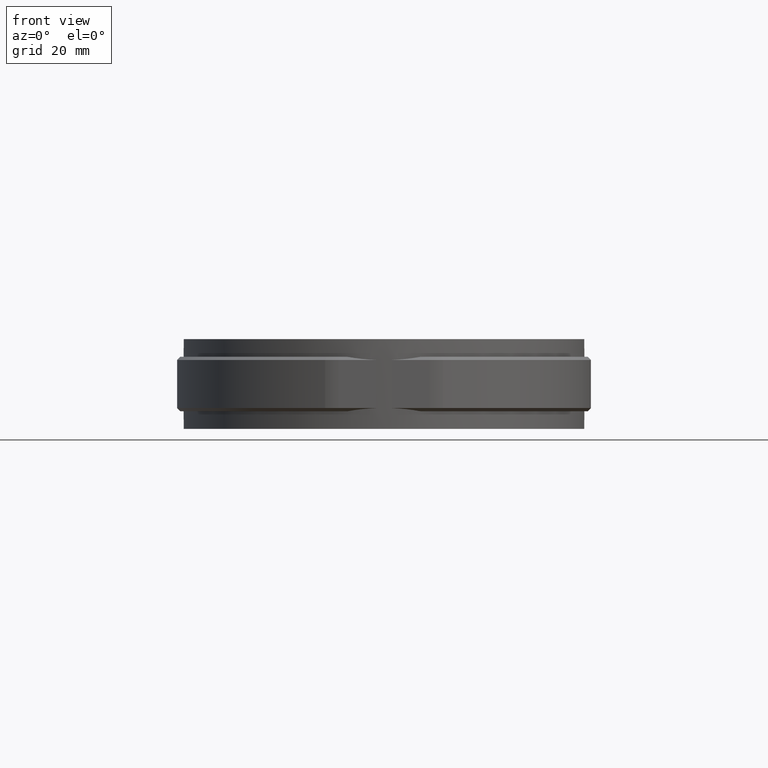
[diagram: clean part render]
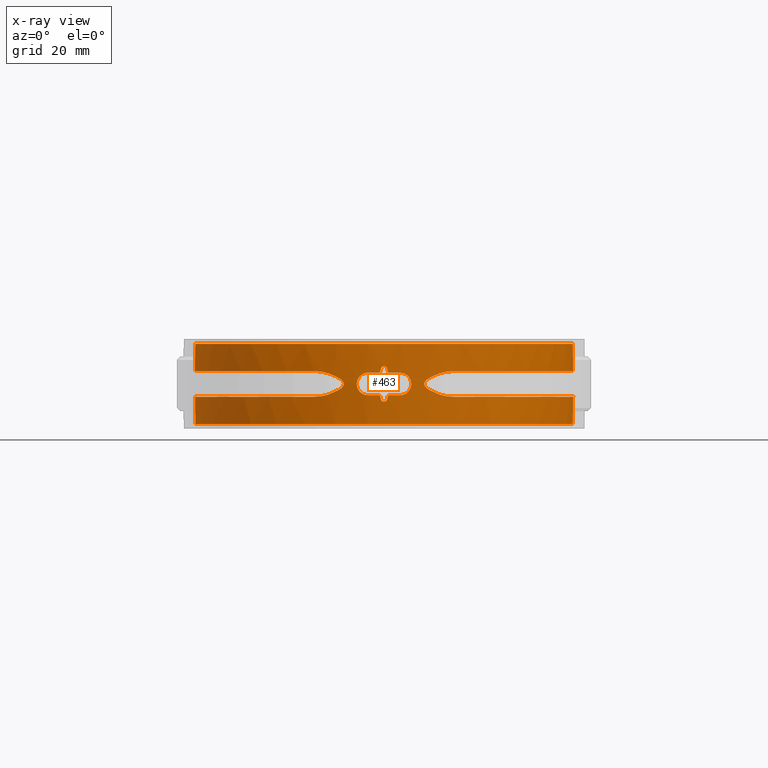
[diagram: x-ray — body ghosted, one internal face saturated and labeled with its STEP entity id]
A machine part, front view, then the same camera in x-ray: the body is ghosted and one INTERNAL B-rep face — a face not visible from any outside direction — is saturated and labeled: STEP entity #463.
In plain terms, the highlighted cylindrical surface (partial cylindrical patch) has radius 59 mm, axis along (0, 0, -1).
Its self-contained STEP definition (entity closure, byte-faithful):
#463 = ADVANCED_FACE( '', ( #812, #813 ), #814, .F. );
#812 = FACE_BOUND( '', #1546, .T. );
#813 = FACE_OUTER_BOUND( '', #1547, .T. );
#814 = CYLINDRICAL_SURFACE( '', #1548, 59.0000000000000 );
#1546 = EDGE_LOOP( '', ( #2988, #2989, #2990, #2991, #2992, #2993, #2994, #2995, #2996, #2997, #2998, #2999, #3000, #3001, #3002, #3003 ) );
#1547 = EDGE_LOOP( '', ( #3004, #3005, #3006, #3007, #3008, #3009, #3010, #3011, #3012, #3013, #3014, #3015, #3016, #3017, #3018, #3019 ) );
#1548 = AXIS2_PLACEMENT_3D( '', #3020, #3021, #3022 );
#2988 = ORIENTED_EDGE( '', *, *, #6739, .F. );
#2989 = ORIENTED_EDGE( '', *, *, #6740, .F. );
#2990 = ORIENTED_EDGE( '', *, *, #6741, .F. );
#2991 = ORIENTED_EDGE( '', *, *, #6742, .F. );
#2992 = ORIENTED_EDGE( '', *, *, #6743, .F. );
#2993 = ORIENTED_EDGE( '', *, *, #6744, .F. );
#2994 = ORIENTED_EDGE( '', *, *, #6745, .F. );
#2995 = ORIENTED_EDGE( '', *, *, #6746, .F. );
#2996 = ORIENTED_EDGE( '', *, *, #6747, .F. );
#2997 = ORIENTED_EDGE( '', *, *, #6748, .F. );
#2998 = ORIENTED_EDGE( '', *, *, #6749, .F. );
#2999 = ORIENTED_EDGE( '', *, *, #6750, .F. );
#3000 = ORIENTED_EDGE( '', *, *, #6751, .F. );
#3001 = ORIENTED_EDGE( '', *, *, #6752, .F. );
#3002 = ORIENTED_EDGE( '', *, *, #6736, .F. );
#3003 = ORIENTED_EDGE( '', *, *, #6732, .F. );
#3004 = ORIENTED_EDGE( '', *, *, #6753, .F. );
#3005 = ORIENTED_EDGE( '', *, *, #6754, .F. );
#3006 = ORIENTED_EDGE( '', *, *, #6755, .T. );
#3007 = ORIENTED_EDGE( '', *, *, #6756, .T. );
#3008 = ORIENTED_EDGE( '', *, *, #6757, .T. );
#3009 = ORIENTED_EDGE( '', *, *, #6758, .T. );
#3010 = ORIENTED_EDGE( '', *, *, #6759, .T. );
#3011 = ORIENTED_EDGE( '', *, *, #6760, .T. );
#3012 = ORIENTED_EDGE( '', *, *, #6761, .T. );
#3013 = ORIENTED_EDGE( '', *, *, #6762, .T. );
#3014 = ORIENTED_EDGE( '', *, *, #6763, .F. );
#3015 = ORIENTED_EDGE( '', *, *, #6764, .F. );
#3016 = ORIENTED_EDGE( '', *, *, #6765, .F. );
#3017 = ORIENTED_EDGE( '', *, *, #6766, .F. );
#3018 = ORIENTED_EDGE( '', *, *, #6767, .F. );
#3019 = ORIENTED_EDGE( '', *, *, #6768, .F. );
#3020 = CARTESIAN_POINT( '', ( 0.000000000000000, 0.000000000000000, -12.5000000000000 ) );
#3021 = DIRECTION( '', ( 0.000000000000000, 0.000000000000000, -1.00000000000000 ) );
#3022 = DIRECTION( '', ( -1.00000000000000, 6.16283340149655E-017, 0.000000000000000 ) );
#6732 = EDGE_CURVE( '', #7686, #7687, #7688, .T. );
#6736 = EDGE_CURVE( '', #7687, #7694, #7695, .T. );
#6739 = EDGE_CURVE( '', #7699, #7686, #7700, .T. );
#6740 = EDGE_CURVE( '', #7701, #7699, #7702, .T. );
#6741 = EDGE_CURVE( '', #7703, #7701, #7704, .T. );
#6742 = EDGE_CURVE( '', #7705, #7703, #7706, .T. );
#6743 = EDGE_CURVE( '', #7707, #7705, #7708, .T. );
#6744 = EDGE_CURVE( '', #7709, #7707, #7710, .T. );
#6745 = EDGE_CURVE( '', #7711, #7709, #7712, .T. );
#6746 = EDGE_CURVE( '', #7713, #7711, #7714, .T. );
#6747 = EDGE_CURVE( '', #7715, #7713, #7716, .T. );
#6748 = EDGE_CURVE( '', #7717, #7715, #7718, .T. );
#6749 = EDGE_CURVE( '', #7719, #7717, #7720, .T. );
#6750 = EDGE_CURVE( '', #7721, #7719, #7722, .T. );
#6751 = EDGE_CURVE( '', #7723, #7721, #7724, .T. );
#6752 = EDGE_CURVE( '', #7694, #7723, #7725, .T. );
#6753 = EDGE_CURVE( '', #7726, #7727, #7728, .T. );
#6754 = EDGE_CURVE( '', #7729, #7726, #7730, .T. );
#6755 = EDGE_CURVE( '', #7729, #7731, #7732, .T. );
#6756 = EDGE_CURVE( '', #7731, #7733, #7734, .T. );
#6757 = EDGE_CURVE( '', #7733, #7735, #7736, .T. );
#6758 = EDGE_CURVE( '', #7735, #7737, #7738, .T. );
#6759 = EDGE_CURVE( '', #7737, #7739, #7740, .T. );
#6760 = EDGE_CURVE( '', #7739, #7741, #7742, .T. );
#6761 = EDGE_CURVE( '', #7741, #7743, #7744, .T. );
#6762 = EDGE_CURVE( '', #7743, #7745, #7746, .T. );
#6763 = EDGE_CURVE( '', #7747, #7745, #7748, .T. );
#6764 = EDGE_CURVE( '', #7749, #7747, #7750, .T. );
#6765 = EDGE_CURVE( '', #7751, #7749, #7752, .T. );
#6766 = EDGE_CURVE( '', #7753, #7751, #7754, .T. );
#6767 = EDGE_CURVE( '', #7755, #7753, #7756, .T. );
#6768 = EDGE_CURVE( '', #7727, #7755, #7757, .T. );
#7686 = VERTEX_POINT( '', #9272 );
#7687 = VERTEX_POINT( '', #9273 );
#7688 = B_SPLINE_CURVE_WITH_KNOTS( '', 3, ( #9274, #9275, #9276, #9277, #9278, #9279 ), .UNSPECIFIED., .F., .F., ( 4, 2, 4 ), ( 0.000000000000000, 0.000335830664960721, 0.000671661329921441 ), .UNSPECIFIED. );
#7694 = VERTEX_POINT( '', #9292 );
#7695 = ELLIPSE( '', #9293, 268.778051997388, 59.0000000000000 );
#7699 = VERTEX_POINT( '', #9298 );
#7700 = CIRCLE( '', #9299, 59.0000000000000 );
#7701 = VERTEX_POINT( '', #9300 );
#7702 = B_SPLINE_CURVE_WITH_KNOTS( '', 3, ( #9301, #9302, #9303, #9304, #9305, #9306, #9307, #9308, #9309, #9310, #9311, #9312, #9313, #9314, #9315, #9316, #9317, #9318, #9319, #9320, #9321, #9322, #9323, #9324, #9325, #9326, #9327, #9328, #9329, #9330, #9331, #9332, #9333, #9334 ), .UNSPECIFIED., .F., .F., ( 4, 2, 2, 2, 2, 2, 2, 2, 2, 2, 2, 2, 2, 2, 2, 2, 4 ), ( 0.000000000000000, 0.000685851132753038, 0.00137170226550608, 0.00205755339825911, 0.00274340453101215, 0.00342925566376519, 0.00411510679651823, 0.00480095792927127, 0.00548680906202431, 0.00617266019477734, 0.00685851132753038, 0.00754436246028342, 0.00823021359303646, 0.00891606472578950, 0.00960191585854253, 0.0102877669912956, 0.0109736181240486 ), .UNSPECIFIED. );
#7703 = VERTEX_POINT( '', #9335 );
#7704 = CIRCLE( '', #9336, 59.0000000000000 );
#7705 = VERTEX_POINT( '', #9337 );
#7706 = B_SPLINE_CURVE_WITH_KNOTS( '', 3, ( #9338, #9339, #9340, #9341, #9342, #9343 ), .UNSPECIFIED., .F., .F., ( 4, 2, 4 ), ( 0.000000000000000, 0.000335831862517561, 0.000671663725035123 ), .UNSPECIFIED. );
#7707 = VERTEX_POINT( '', #9344 );
#7708 = ELLIPSE( '', #9345, 268.777914887554, 59.0000000000000 );
#7709 = VERTEX_POINT( '', #9346 );
#7710 = B_SPLINE_CURVE_WITH_KNOTS( '', 3, ( #9347, #9348, #9349, #9350, #9351, #9352, #9353, #9354, #9355, #9356 ), .UNSPECIFIED., .F., .F., ( 4, 2, 2, 2, 4 ), ( 0.000000000000000, 0.000671559463065124, 0.00134311892613025, 0.00201467838919537, 0.00268623785226050 ), .UNSPECIFIED. );
#7711 = VERTEX_POINT( '', #9357 );
#7712 = ELLIPSE( '', #9358, 268.778051997445, 59.0000000000000 );
#7713 = VERTEX_POINT( '', #9359 );
#7714 = B_SPLINE_CURVE_WITH_KNOTS( '', 3, ( #9360, #9361, #9362, #9363, #9364, #9365 ), .UNSPECIFIED., .F., .F., ( 4, 2, 4 ), ( 0.000000000000000, 0.000335830664960740, 0.000671661329921480 ), .UNSPECIFIED. );
#7715 = VERTEX_POINT( '', #9366 );
#7716 = CIRCLE( '', #9367, 59.0000000000000 );
#7717 = VERTEX_POINT( '', #9368 );
#7718 = B_SPLINE_CURVE_WITH_KNOTS( '', 3, ( #9369, #9370, #9371, #9372, #9373, #9374, #9375, #9376, #9377, #9378, #9379, #9380, #9381, #9382, #9383, #9384, #9385, #9386, #9387, #9388, #9389, #9390, #9391, #9392, #9393, #9394, #9395, #9396, #9397, #9398, #9399, #9400, #9401, #9402 ), .UNSPECIFIED., .F., .F., ( 4, 2, 2, 2, 2, 2, 2, 2, 2, 2, 2, 2, 2, 2, 2, 2, 4 ), ( 0.000000000000000, 0.000685851132753035, 0.00137170226550607, 0.00205755339825910, 0.00274340453101214, 0.00342925566376517, 0.00411510679651821, 0.00480095792927124, 0.00548680906202427, 0.00617266019477731, 0.00685851132753034, 0.00754436246028337, 0.00823021359303640, 0.00891606472578944, 0.00960191585854247, 0.0102877669912955, 0.0109736181240485 ), .UNSPECIFIED. );
#7719 = VERTEX_POINT( '', #9403 );
#7720 = CIRCLE( '', #9404, 59.0000000000000 );
#7721 = VERTEX_POINT( '', #9405 );
#7722 = B_SPLINE_CURVE_WITH_KNOTS( '', 3, ( #9406, #9407, #9408, #9409, #9410, #9411 ), .UNSPECIFIED., .F., .F., ( 4, 2, 4 ), ( 0.000000000000000, 0.000335831862517506, 0.000671663725035012 ), .UNSPECIFIED. );
#7723 = VERTEX_POINT( '', #9412 );
#7724 = ELLIPSE( '', #9413, 268.777914887533, 59.0000000000000 );
#7725 = B_SPLINE_CURVE_WITH_KNOTS( '', 3, ( #9414, #9415, #9416, #9417, #9418, #9419, #9420, #9421, #9422, #9423 ), .UNSPECIFIED., .F., .F., ( 4, 2, 2, 2, 4 ), ( 1.08420217248550E-019, 0.000671559463065125, 0.00134311892613025, 0.00201467838919537, 0.00268623785226050 ), .UNSPECIFIED. );
#7726 = VERTEX_POINT( '', #9424 );
#7727 = VERTEX_POINT( '', #9425 );
#7728 = B_SPLINE_CURVE_WITH_KNOTS( '', 3, ( #9426, #9427, #9428, #9429, #9430, #9431, #9432, #9433, #9434, #9435, #9436, #9437, #9438, #9439, #9440, #9441, #9442, #9443, #9444, #9445, #9446, #9447, #9448, #9449, #9450, #9451, #9452, #9453, #9454, #9455, #9456, #9457, #9458, #9459, #9460, #9461, #9462, #9463, #9464, #9465, #9466, #9467, #9468, #9469, #9470, #9471, #9472, #9473, #9474, #9475, #9476, #9477, #9478, #9479, #9480, #9481, #9482, #9483, #9484, #9485 ), .UNSPECIFIED., .F., .F., ( 4, 2, 2, 2, 2, 2, 2, 2, 2, 2, 2, 2, 2, 2, 2, 2, 2, 2, 2, 2, 2, 2, 2, 2, 2, 2, 2, 2, 2, 4 ), ( 0.000000000000000, 0.00982109824679834, 0.0147316473701975, 0.0196421964935967, 0.0294632947403950, 0.0319185693020946, 0.0343738438637942, 0.0392843929871934, 0.0491054912339918, 0.0515607657956913, 0.0540160403573909, 0.0589265894807900, 0.0687476877275883, 0.0712029622892879, 0.0736582368509874, 0.0785687859743866, 0.0883898842211849, 0.0908451587828845, 0.0933004333445840, 0.0982109824679832, 0.108032080714781, 0.110487355276481, 0.112942629838181, 0.117853178961580, 0.127674277208378, 0.132584826331777, 0.137495375455176, 0.147316473701975, 0.152227022825374, 0.157137571948773 ), .UNSPECIFIED. );
#7729 = VERTEX_POINT( '', #9486 );
#7730 = LINE( '', #9487, #9488 );
#7731 = VERTEX_POINT( '', #9489 );
#7732 = CIRCLE( '', #9490, 59.0000000000000 );
#7733 = VERTEX_POINT( '', #9491 );
#7734 = LINE( '', #9492, #9493 );
#7735 = VERTEX_POINT( '', #9494 );
#7736 = B_SPLINE_CURVE_WITH_KNOTS( '', 3, ( #9495, #9496, #9497, #9498, #9499, #9500, #9501, #9502, #9503, #9504, #9505, #9506, #9507, #9508, #9509, #9510, #9511, #9512, #9513, #9514, #9515, #9516, #9517, #9518, #9519, #9520, #9521, #9522, #9523, #9524, #9525, #9526, #9527, #9528, #9529, #9530, #9531, #9532, #9533, #9534, #9535, #9536, #9537, #9538, #9539, #9540, #9541, #9542, #9543, #9544, #9545, #9546, #9547, #9548, #9549, #9550, #9551, #9552, #9553, #9554, #9555, #9556, #9557, #9558 ), .UNSPECIFIED., .F., .F., ( 4, 2, 2, 2, 2, 2, 2, 2, 2, 2, 2, 2, 2, 2, 2, 2, 2, 2, 2, 2, 2, 2, 2, 2, 2, 2, 2, 2, 2, 2, 2, 4 ), ( 0.00468908810385435, 0.00960021925515397, 0.0120557848308038, 0.0145113504064536, 0.0243336127090528, 0.0292447438603525, 0.0317003094360023, 0.0341558750116521, 0.0439781373142514, 0.0488892684655510, 0.0513448340412008, 0.0538003996168507, 0.0636226619194500, 0.0685337930707497, 0.0709893586463995, 0.0734449242220494, 0.0832671865246487, 0.0881783176759484, 0.0906338832515983, 0.0930894488272481, 0.102911711129847, 0.107822842281147, 0.112733973432447, 0.122556235735046, 0.127467366886346, 0.129922932461996, 0.132378498037646, 0.142200760340245, 0.147111891491545, 0.149567457067194, 0.152023022642844, 0.161845284945444 ), .UNSPECIFIED. );
#7737 = VERTEX_POINT( '', #9559 );
#7738 = B_SPLINE_CURVE_WITH_KNOTS( '', 3, ( #9560, #9561, #9562, #9563, #9564, #9565, #9566, #9567 ), .UNSPECIFIED., .F., .F., ( 4, 2, 2, 4 ), ( 0.000000000000000, 0.00238180477865858, 0.00357270716798786, 0.00476360955731715 ), .UNSPECIFIED. );
#7739 = VERTEX_POINT( '', #9568 );
#7740 = B_SPLINE_CURVE_WITH_KNOTS( '', 3, ( #9569, #9570, #9571, #9572, #9573, #9574, #9575, #9576, #9577, #9578, #9579, #9580, #9581, #9582, #9583, #9584, #9585, #9586, #9587, #9588, #9589, #9590, #9591, #9592, #9593, #9594, #9595, #9596, #9597, #9598, #9599, #9600 ), .UNSPECIFIED., .F., .F., ( 4, 2, 2, 2, 2, 2, 2, 2, 2, 2, 2, 2, 2, 2, 2, 4 ), ( 0.000000000000000, 0.00155772250245570, 0.00311544500491140, 0.00389430625613926, 0.00467316750736711, 0.00545202875859497, 0.00584145938420890, 0.00623089000982283, 0.00662032063543675, 0.00700975126105068, 0.00739918188666461, 0.00778861251227854, 0.00856747376350639, 0.00934633501473424, 0.0109040575171899, 0.0124617800196456 ), .UNSPECIFIED. );
#7741 = VERTEX_POINT( '', #9601 );
#7742 = B_SPLINE_CURVE_WITH_KNOTS( '', 3, ( #9602, #9603, #9604, #9605, #9606, #9607 ), .UNSPECIFIED., .F., .F., ( 4, 2, 4 ), ( 0.000000000000000, 0.00237608855022775, 0.00475217710045549 ), .UNSPECIFIED. );
#7743 = VERTEX_POINT( '', #9608 );
#7744 = B_SPLINE_CURVE_WITH_KNOTS( '', 3, ( #9609, #9610, #9611, #9612, #9613, #9614, #9615, #9616, #9617, #9618, #9619, #9620, #9621, #9622, #9623, #9624, #9625, #9626, #9627, #9628, #9629, #9630, #9631, #9632, #9633, #9634, #9635, #9636, #9637, #9638, #9639, #9640, #9641, #9642, #9643, #9644, #9645, #9646, #9647, #9648, #9649, #9650, #9651, #9652, #9653, #9654, #9655, #9656, #9657, #9658, #9659, #9660, #9661, #9662, #9663, #9664, #9665, #9666, #9667, #9668, #9669, #9670 ), .UNSPECIFIED., .F., .F., ( 4, 2, 2, 2, 2, 2, 2, 2, 2, 2, 2, 2, 2, 2, 2, 2, 2, 2, 2, 2, 2, 2, 2, 2, 2, 2, 2, 2, 2, 2, 4 ), ( 0.000000000000000, 0.00982211142445252, 0.0147331671366788, 0.0196442228489050, 0.0294663342733575, 0.0319218621294707, 0.0343773899855838, 0.0392884456978101, 0.0491105571222626, 0.0515660849783757, 0.0540216128344888, 0.0589326685467150, 0.0687547799711675, 0.0712103078272806, 0.0736658356833938, 0.0785768913956200, 0.0883990028200725, 0.0908545306761856, 0.0933100585322987, 0.0982211142445250, 0.108043225668977, 0.110498753525091, 0.112954281381204, 0.117865337093430, 0.127687448517882, 0.132598504230109, 0.137509559942335, 0.147331671366787, 0.149787199222901, 0.152242727079014, 0.157153782791240 ), .UNSPECIFIED. );
#7745 = VERTEX_POINT( '', #9671 );
#7746 = LINE( '', #9672, #9673 );
#7747 = VERTEX_POINT( '', #9674 );
#7748 = CIRCLE( '', #9675, 59.0000000000000 );
#7749 = VERTEX_POINT( '', #9676 );
#7750 = LINE( '', #9677, #9678 );
#7751 = VERTEX_POINT( '', #9679 );
#7752 = B_SPLINE_CURVE_WITH_KNOTS( '', 3, ( #9680, #9681, #9682, #9683, #9684, #9685, #9686, #9687, #9688, #9689, #9690, #9691, #9692, #9693, #9694, #9695, #9696, #9697, #9698, #9699, #9700, #9701, #9702, #9703, #9704, #9705, #9706, #9707, #9708, #9709, #9710, #9711, #9712, #9713, #9714, #9715, #9716, #9717, #9718, #9719, #9720, #9721, #9722, #9723, #9724, #9725, #9726, #9727, #9728, #9729, #9730, #9731, #9732, #9733, #9734, #9735, #9736, #9737, #9738, #9739, #9740, #9741 ), .UNSPECIFIED., .F., .F., ( 4, 2, 2, 2, 2, 2, 2, 2, 2, 2, 2, 2, 2, 2, 2, 2, 2, 2, 2, 2, 2, 2, 2, 2, 2, 2, 2, 2, 2, 2, 4 ), ( 0.000000000000000, 0.00982211142445247, 0.0147331671366787, 0.0196442228489049, 0.0294663342733574, 0.0319218621294705, 0.0343773899855837, 0.0392884456978099, 0.0491105571222624, 0.0515660849783756, 0.0540216128344887, 0.0589326685467149, 0.0687547799711674, 0.0712103078272806, 0.0736658356833937, 0.0785768913956199, 0.0883990028200724, 0.0908545306761855, 0.0933100585322987, 0.0982211142445249, 0.108043225668977, 0.110498753525091, 0.112954281381204, 0.117865337093430, 0.127687448517882, 0.132598504230109, 0.137509559942335, 0.147331671366787, 0.149787199222900, 0.152242727079014, 0.157153782791240 ), .UNSPECIFIED. );
#7753 = VERTEX_POINT( '', #9742 );
#7754 = B_SPLINE_CURVE_WITH_KNOTS( '', 3, ( #9743, #9744, #9745, #9746, #9747, #9748 ), .UNSPECIFIED., .F., .F., ( 4, 2, 4 ), ( 0.000000000000000, 0.00237608855022775, 0.00475217710045549 ), .UNSPECIFIED. );
#7755 = VERTEX_POINT( '', #9749 );
#7756 = B_SPLINE_CURVE_WITH_KNOTS( '', 3, ( #9750, #9751, #9752, #9753, #9754, #9755, #9756, #9757, #9758, #9759, #9760, #9761, #9762, #9763, #9764, #9765, #9766, #9767, #9768, #9769, #9770, #9771, #9772, #9773, #9774, #9775, #9776, #9777, #9778, #9779, #9780, #9781 ), .UNSPECIFIED., .F., .F., ( 4, 2, 2, 2, 2, 2, 2, 2, 2, 2, 2, 2, 2, 2, 2, 4 ), ( 0.000000000000000, 0.00155772250245570, 0.00311544500491140, 0.00389430625613926, 0.00467316750736711, 0.00545202875859497, 0.00584145938420890, 0.00623089000982283, 0.00662032063543675, 0.00700975126105068, 0.00739918188666461, 0.00778861251227854, 0.00856747376350639, 0.00934633501473424, 0.0109040575171899, 0.0124617800196456 ), .UNSPECIFIED. );
#7757 = B_SPLINE_CURVE_WITH_KNOTS( '', 3, ( #9782, #9783, #9784, #9785, #9786, #9787, #9788, #9789 ), .UNSPECIFIED., .F., .F., ( 4, 2, 2, 4 ), ( 0.000000000000000, 0.00238180477865858, 0.00357270716798786, 0.00476360955731715 ), .UNSPECIFIED. );
#9272 = CARTESIAN_POINT( '', ( 1.64999999999996, -58.9769234531609, -3.50000000000000 ) );
#9273 = CARTESIAN_POINT( '', ( 1.16219512100908, -58.9885523004312, -3.89024390662627 ) );
#9274 = CARTESIAN_POINT( '', ( 1.64999999999996, -58.9769234531609, -3.50000000000000 ) );
#9275 = CARTESIAN_POINT( '', ( 1.53648956970049, -58.9800991394977, -3.50000000000000 ) );
#9276 = CARTESIAN_POINT( '', ( 1.42634218063908, -58.9828230301944, -3.53862491769604 ) );
#9277 = CARTESIAN_POINT( '', ( 1.24902230327138, -58.9868443630734, -3.68045865141035 ) );
#9278 = CARTESIAN_POINT( '', ( 1.18712178149787, -58.9880611942407, -3.77945874445779 ) );
#9279 = CARTESIAN_POINT( '', ( 1.16219512100908, -58.9885523004312, -3.89024390662627 ) );
#9292 = CARTESIAN_POINT( '', ( 0.975609999999941, -58.9919332208049, -4.71951199999997 ) );
#9293 = AXIS2_PLACEMENT_3D( '', #13656, #13657, #13658 );
#9298 = CARTESIAN_POINT( '', ( 4.99999999999998, -58.7877538267963, -3.50000000000000 ) );
#9299 = AXIS2_PLACEMENT_3D( '', #13663, #13664, #13665 );
#9300 = CARTESIAN_POINT( '', ( 4.99999999999998, -58.7877538267963, 3.50000000000002 ) );
#9301 = CARTESIAN_POINT( '', ( 4.99999999999998, -58.7877538267963, 3.50000000000002 ) );
#9302 = CARTESIAN_POINT( '', ( 5.23108413348057, -58.7680997221199, 3.50000000000002 ) );
#9303 = CARTESIAN_POINT( '', ( 5.45819455013254, -58.7474122779407, 3.47733999200575 ) );
#9304 = CARTESIAN_POINT( '', ( 5.90482783050663, -58.7042021101855, 3.38867559127668 ) );
#9305 = CARTESIAN_POINT( '', ( 6.12662308990337, -58.6814262901997, 3.32162111966005 ) );
#9306 = CARTESIAN_POINT( '', ( 6.54984464601431, -58.6356959287681, 3.14649456101483 ) );
#9307 = CARTESIAN_POINT( '', ( 6.75055505248692, -58.6128534794737, 3.03935030949847 ) );
#9308 = CARTESIAN_POINT( '', ( 7.13045100298396, -58.5678517193260, 2.78626485092867 ) );
#9309 = CARTESIAN_POINT( '', ( 7.31050022766368, -58.5455642275241, 2.63886830700557 ) );
#9310 = CARTESIAN_POINT( '', ( 7.63348136552969, -58.5043286137011, 2.31663832765503 ) );
#9311 = CARTESIAN_POINT( '', ( 7.77847754412582, -58.4851434219375, 2.14078296787098 ) );
#9312 = CARTESIAN_POINT( '', ( 8.03471046615397, -58.4504930835844, 1.75881254411988 ) );
#9313 = CARTESIAN_POINT( '', ( 8.14402130239906, -58.4352868761578, 1.55474541954600 ) );
#9314 = CARTESIAN_POINT( '', ( 8.31932393185657, -58.4105870933483, 1.13322191337027 ) );
#9315 = CARTESIAN_POINT( '', ( 8.38677476490916, -58.4008913073621, 0.912796447465687 ) );
#9316 = CARTESIAN_POINT( '', ( 8.47740877979448, -58.3878038363484, 0.459422290425430 ) );
#9317 = CARTESIAN_POINT( '', ( 8.49981912633926, -58.3845277008603, 0.231624901915488 ) );
#9318 = CARTESIAN_POINT( '', ( 8.50017871383591, -58.3844753497525, -0.226126034519209 ) );
#9319 = CARTESIAN_POINT( '', ( 8.47740880844461, -58.3878034574401, -0.458604827584874 ) );
#9320 = CARTESIAN_POINT( '', ( 8.38772583824268, -58.4007543440376, -0.908847651609015 ) );
#9321 = CARTESIAN_POINT( '', ( 8.32137254716229, -58.4102956476473, -1.12748260726234 ) );
#9322 = CARTESIAN_POINT( '', ( 8.14558538630872, -58.4350692429519, -1.55178130036528 ) );
#9323 = CARTESIAN_POINT( '', ( 8.03570203821487, -58.4503540507746, -1.75686419962604 ) );
#9324 = CARTESIAN_POINT( '', ( 7.78192029299705, -58.4846827165995, -2.13611286316074 ) );
#9325 = CARTESIAN_POINT( '', ( 7.63714317940733, -58.5038559077880, -2.31274384093065 ) );
#9326 = CARTESIAN_POINT( '', ( 7.31048146509589, -58.5455717605566, -2.63912554114154 ) );
#9327 = CARTESIAN_POINT( '', ( 7.13371080697336, -58.5674525565177, -2.78372000112002 ) );
#9328 = CARTESIAN_POINT( '', ( 6.75515806783143, -58.6123209599833, -3.03664930628429 ) );
#9329 = CARTESIAN_POINT( '', ( 6.55090779419293, -58.6355770529216, -3.14597063701746 ) );
#9330 = CARTESIAN_POINT( '', ( 6.12774632776922, -58.6813088998502, -3.32123989727744 ) );
#9331 = CARTESIAN_POINT( '', ( 5.90999584776116, -58.7036842363178, -3.38733444513859 ) );
#9332 = CARTESIAN_POINT( '', ( 5.46222842016049, -58.7470395383789, -3.47684799405451 ) );
#9333 = CARTESIAN_POINT( '', ( 5.23108207595418, -58.7680998971161, -3.50000000000000 ) );
#9334 = CARTESIAN_POINT( '', ( 4.99999999999998, -58.7877538267963, -3.50000000000000 ) );
#9335 = CARTESIAN_POINT( '', ( 1.65000000000000, -58.9769234531609, 3.50000000000002 ) );
#9336 = AXIS2_PLACEMENT_3D( '', #13666, #13667, #13668 );
#9337 = CARTESIAN_POINT( '', ( 1.16219499999993, -58.9885523028153, 3.89024400000002 ) );
#9338 = CARTESIAN_POINT( '', ( 1.16219499999993, -58.9885523028153, 3.89024400000002 ) );
#9339 = CARTESIAN_POINT( '', ( 1.18712166700418, -58.9880611965476, 3.77945881109422 ) );
#9340 = CARTESIAN_POINT( '', ( 1.24902118212657, -58.9868443876833, 3.68045968489528 ) );
#9341 = CARTESIAN_POINT( '', ( 1.42634221683241, -58.9828230301895, 3.53862467997295 ) );
#9342 = CARTESIAN_POINT( '', ( 1.53648954204320, -58.9800991402714, 3.49999999951282 ) );
#9343 = CARTESIAN_POINT( '', ( 1.65000000000000, -58.9769234531609, 3.50000000000001 ) );
#9344 = CARTESIAN_POINT( '', ( 0.975609757981770, -58.9919332248074, 4.71951218674747 ) );
#9345 = AXIS2_PLACEMENT_3D( '', #13669, #13670, #13671 );
#9346 = CARTESIAN_POINT( '', ( -0.975610000000063, -58.9919332208049, 4.71951200000002 ) );
#9347 = CARTESIAN_POINT( '', ( -0.975610000000063, -58.9919332208049, 4.71951200000002 ) );
#9348 = CARTESIAN_POINT( '', ( -0.925764280772172, -58.9927575704995, 4.94104863778685 ) );
#9349 = CARTESIAN_POINT( '', ( -0.802007156324425, -58.9948152530844, 5.13901837796009 ) );
#9350 = CARTESIAN_POINT( '', ( -0.447387927062172, -58.9985702052777, 5.42271548677439 ) );
#9351 = CARTESIAN_POINT( '', ( -0.227076191264798, -59.0000000002834, 5.50000004286184 ) );
#9352 = CARTESIAN_POINT( '', ( 0.227076338533440, -58.9999999997166, 5.49999996400536 ) );
#9353 = CARTESIAN_POINT( '', ( 0.447393460336537, -58.9985701540127, 5.42271188214962 ) );
#9354 = CARTESIAN_POINT( '', ( 0.802006497285810, -58.9948152527375, 5.13901776315540 ) );
#9355 = CARTESIAN_POINT( '', ( 0.925763996264610, -58.9927575750001, 4.94104881536452 ) );
#9356 = CARTESIAN_POINT( '', ( 0.975609757981770, -58.9919332248074, 4.71951218674747 ) );
#9357 = CARTESIAN_POINT( '', ( -1.16219512100916, -58.9885523004312, 3.89024390662631 ) );
#9358 = AXIS2_PLACEMENT_3D( '', #13672, #13673, #13674 );
#9359 = CARTESIAN_POINT( '', ( -1.65000000000008, -58.9769234531609, 3.50000000000002 ) );
#9360 = CARTESIAN_POINT( '', ( -1.65000000000008, -58.9769234531609, 3.50000000000002 ) );
#9361 = CARTESIAN_POINT( '', ( -1.53648956970059, -58.9800991394977, 3.50000000000002 ) );
#9362 = CARTESIAN_POINT( '', ( -1.42634218063918, -58.9828230301944, 3.53862491769606 ) );
#9363 = CARTESIAN_POINT( '', ( -1.24902230327147, -58.9868443630734, 3.68045865141038 ) );
#9364 = CARTESIAN_POINT( '', ( -1.18712178149796, -58.9880611942407, 3.77945874445783 ) );
#9365 = CARTESIAN_POINT( '', ( -1.16219512100916, -58.9885523004312, 3.89024390662631 ) );
#9366 = CARTESIAN_POINT( '', ( -5.00000000000001, -58.7877538267963, 3.50000000000002 ) );
#9367 = AXIS2_PLACEMENT_3D( '', #13675, #13676, #13677 );
#9368 = CARTESIAN_POINT( '', ( -5.00000000000001, -58.7877538267963, -3.49999999999997 ) );
#9369 = CARTESIAN_POINT( '', ( -5.00000000000001, -58.7877538267963, -3.49999999999997 ) );
#9370 = CARTESIAN_POINT( '', ( -5.23108413348059, -58.7680997221199, -3.49999999999997 ) );
#9371 = CARTESIAN_POINT( '', ( -5.45819455013256, -58.7474122779407, -3.47733999200570 ) );
#9372 = CARTESIAN_POINT( '', ( -5.90482783050665, -58.7042021101855, -3.38867559127663 ) );
#9373 = CARTESIAN_POINT( '', ( -6.12662308990339, -58.6814262901997, -3.32162111966001 ) );
#9374 = CARTESIAN_POINT( '', ( -6.54984464601432, -58.6356959287681, -3.14649456101478 ) );
#9375 = CARTESIAN_POINT( '', ( -6.75055505248694, -58.6128534794737, -3.03935030949843 ) );
#9376 = CARTESIAN_POINT( '', ( -7.13045100298398, -58.5678517193260, -2.78626485092863 ) );
#9377 = CARTESIAN_POINT( '', ( -7.31050022766370, -58.5455642275241, -2.63886830700553 ) );
#9378 = CARTESIAN_POINT( '', ( -7.63348136552970, -58.5043286137011, -2.31663832765499 ) );
#9379 = CARTESIAN_POINT( '', ( -7.77847754412583, -58.4851434219375, -2.14078296787094 ) );
#9380 = CARTESIAN_POINT( '', ( -8.03471046615398, -58.4504930835844, -1.75881254411984 ) );
#9381 = CARTESIAN_POINT( '', ( -8.14402130239907, -58.4352868761578, -1.55474541954596 ) );
#9382 = CARTESIAN_POINT( '', ( -8.31932393185657, -58.4105870933483, -1.13322191337023 ) );
#9383 = CARTESIAN_POINT( '', ( -8.38677476490917, -58.4008913073621, -0.912796447465654 ) );
#9384 = CARTESIAN_POINT( '', ( -8.47740877979449, -58.3878038363484, -0.459422290425399 ) );
#9385 = CARTESIAN_POINT( '', ( -8.49981912633927, -58.3845277008603, -0.231624901915458 ) );
#9386 = CARTESIAN_POINT( '', ( -8.50017871383592, -58.3844753497525, 0.226126034519236 ) );
#9387 = CARTESIAN_POINT( '', ( -8.47740880844461, -58.3878034574401, 0.458604827584900 ) );
#9388 = CARTESIAN_POINT( '', ( -8.38772583824269, -58.4007543440376, 0.908847651609038 ) );
#9389 = CARTESIAN_POINT( '', ( -8.32137254716229, -58.4102956476473, 1.12748260726236 ) );
#9390 = CARTESIAN_POINT( '', ( -8.14558538630873, -58.4350692429519, 1.55178130036530 ) );
#9391 = CARTESIAN_POINT( '', ( -8.03570203821488, -58.4503540507746, 1.75686419962606 ) );
#9392 = CARTESIAN_POINT( '', ( -7.78192029299706, -58.4846827165995, 2.13611286316075 ) );
#9393 = CARTESIAN_POINT( '', ( -7.63714317940734, -58.5038559077880, 2.31274384093067 ) );
#9394 = CARTESIAN_POINT( '', ( -7.31048146509590, -58.5455717605566, 2.63912554114155 ) );
#9395 = CARTESIAN_POINT( '', ( -7.13371080697338, -58.5674525565178, 2.78372000112004 ) );
#9396 = CARTESIAN_POINT( '', ( -6.75515806783144, -58.6123209599833, 3.03664930628430 ) );
#9397 = CARTESIAN_POINT( '', ( -6.55090779419294, -58.6355770529216, 3.14597063701747 ) );
#9398 = CARTESIAN_POINT( '', ( -6.12774632776924, -58.6813088998502, 3.32123989727745 ) );
#9399 = CARTESIAN_POINT( '', ( -5.90999584776118, -58.7036842363178, 3.38733444513860 ) );
#9400 = CARTESIAN_POINT( '', ( -5.46222842016051, -58.7470395383789, 3.47684799405451 ) );
#9401 = CARTESIAN_POINT( '', ( -5.23108207595421, -58.7680998971160, 3.50000000000000 ) );
#9402 = CARTESIAN_POINT( '', ( -5.00000000000001, -58.7877538267963, 3.50000000000000 ) );
#9403 = CARTESIAN_POINT( '', ( -1.65000000000002, -58.9769234531609, -3.49999999999997 ) );
#9404 = AXIS2_PLACEMENT_3D( '', #13678, #13679, #13680 );
#9405 = CARTESIAN_POINT( '', ( -1.16219500000007, -58.9885523028153, -3.89024399999997 ) );
#9406 = CARTESIAN_POINT( '', ( -1.16219500000007, -58.9885523028153, -3.89024399999997 ) );
#9407 = CARTESIAN_POINT( '', ( -1.18712166700431, -58.9880611965476, -3.77945881109419 ) );
#9408 = CARTESIAN_POINT( '', ( -1.24902118212668, -58.9868443876833, -3.68045968489525 ) );
#9409 = CARTESIAN_POINT( '', ( -1.42634221683247, -58.9828230301895, -3.53862467997293 ) );
#9410 = CARTESIAN_POINT( '', ( -1.53648954204324, -58.9800991402714, -3.49999999951280 ) );
#9411 = CARTESIAN_POINT( '', ( -1.65000000000002, -58.9769234531609, -3.49999999999998 ) );
#9412 = CARTESIAN_POINT( '', ( -0.975609757981895, -58.9919332248074, -4.71951218674741 ) );
#9413 = AXIS2_PLACEMENT_3D( '', #13681, #13682, #13683 );
#9414 = CARTESIAN_POINT( '', ( 0.975609999999940, -58.9919332208049, -4.71951199999997 ) );
#9415 = CARTESIAN_POINT( '', ( 0.925764280772048, -58.9927575704995, -4.94104863778681 ) );
#9416 = CARTESIAN_POINT( '', ( 0.802007156324299, -58.9948152530844, -5.13901837796004 ) );
#9417 = CARTESIAN_POINT( '', ( 0.447387927062044, -58.9985702052777, -5.42271548677434 ) );
#9418 = CARTESIAN_POINT( '', ( 0.227076191264668, -59.0000000002834, -5.50000004286180 ) );
#9419 = CARTESIAN_POINT( '', ( -0.227076338533569, -58.9999999997166, -5.49999996400531 ) );
#9420 = CARTESIAN_POINT( '', ( -0.447393460336667, -58.9985701540128, -5.42271188214956 ) );
#9421 = CARTESIAN_POINT( '', ( -0.802006497285937, -58.9948152527375, -5.13901776315534 ) );
#9422 = CARTESIAN_POINT( '', ( -0.925763996264737, -58.9927575750001, -4.94104881536447 ) );
#9423 = CARTESIAN_POINT( '', ( -0.975609757981895, -58.9919332248074, -4.71951218674741 ) );
#9424 = CARTESIAN_POINT( '', ( 6.66129032258062, 58.6227533577045, -3.99498688198039 ) );
#9425 = CARTESIAN_POINT( '', ( 21.8063564343020, -54.8222844521570, -3.99692792942461 ) );
#9426 = CARTESIAN_POINT( '', ( 6.66129032258062, 58.6227533577045, -3.99498688198039 ) );
#9427 = CARTESIAN_POINT( '', ( 9.92598655917676, 58.2517866561866, -3.99287490389904 ) );
#9428 = CARTESIAN_POINT( '', ( 13.1366927703373, 57.6126312559297, -3.99074317195027 ) );
#9429 = CARTESIAN_POINT( '', ( 17.8718571292283, 56.2520552250844, -3.99137687259951 ) );
#9430 = CARTESIAN_POINT( '', ( 19.4231816123595, 55.7349464637424, -3.99212520295343 ) );
#9431 = CARTESIAN_POINT( '', ( 22.4636103951648, 54.5804951358741, -3.99409946560050 ) );
#9432 = CARTESIAN_POINT( '', ( 23.9543421388572, 53.9426782317246, -3.99532362025193 ) );
#9433 = CARTESIAN_POINT( '', ( 28.3391511740369, 51.8496352851425, -3.99775899634475 ) );
#9434 = CARTESIAN_POINT( '', ( 31.1464605518369, 50.2160871210954, -3.99583267373308 ) );
#9435 = CARTESIAN_POINT( '', ( 34.5051972764001, 47.8650571824895, -3.99361047594674 ) );
#9436 = CARTESIAN_POINT( '', ( 35.1685376534670, 47.3797667783787, -3.99320185678510 ) );
#9437 = CARTESIAN_POINT( '', ( 36.4677991809551, 46.3871530011749, -3.99255900718951 ) );
#9438 = CARTESIAN_POINT( '', ( 37.1052471474907, 45.8787803428431, -3.99232365974953 ) );
#9439 = CARTESIAN_POINT( '', ( 38.9815736424342, 44.3179909613731, -3.99194668726850 ) );
#9440 = CARTESIAN_POINT( '', ( 40.1844956253034, 43.2299631112306, -3.99215625371597 ) );
#9441 = CARTESIAN_POINT( '', ( 43.6513273394829, 39.8253087688578, -3.99391390982092 ) );
#9442 = CARTESIAN_POINT( '', ( 45.7742981129259, 37.3690972799482, -3.99694471434304 ) );
#9443 = CARTESIAN_POINT( '', ( 48.1845048291538, 34.0576640687868, -3.99692142052522 ) );
#9444 = CARTESIAN_POINT( '', ( 48.6546846137520, 33.3824988375860, -3.99668691818395 ) );
#9445 = CARTESIAN_POINT( '', ( 49.5617539141498, 32.0203390434638, -3.99598648882550 ) );
#9446 = CARTESIAN_POINT( '', ( 49.9997562313256, 31.3318859307316, -3.99552140940552 ) );
#9447 = CARTESIAN_POINT( '', ( 51.2678809403959, 29.2447462043162, -3.99405805019498 ) );
#9448 = CARTESIAN_POINT( '', ( 52.0521988373031, 27.8243161062402, -3.99301411483058 ) );
#9449 = CARTESIAN_POINT( '', ( 54.2246323110775, 23.4773323237735, -3.99105317764266 ) );
#9450 = CARTESIAN_POINT( '', ( 55.4334832595470, 20.4656811317330, -3.99167353715702 ) );
#9451 = CARTESIAN_POINT( '', ( 56.6358201181129, 16.5545636518536, -3.99400667371377 ) );
#9452 = CARTESIAN_POINT( '', ( 56.8611594103551, 15.7632292750170, -3.99452326933879 ) );
#9453 = CARTESIAN_POINT( '', ( 57.2768210584466, 14.1787381704175, -3.99550576926824 ) );
#9454 = CARTESIAN_POINT( '', ( 57.4675054595457, 13.3846710740915, -3.99597193947145 ) );
#9455 = CARTESIAN_POINT( '', ( 57.9889502366724, 10.9970934554041, -3.99702549994534 ) );
#9456 = CARTESIAN_POINT( '', ( 58.2691882118177, 9.39821577207017, -3.99705565523895 ) );
#9457 = CARTESIAN_POINT( '', ( 58.9111056480915, 4.58046390334786, -3.99504744407627 ) );
#9458 = CARTESIAN_POINT( '', ( 59.0753607485203, 1.34061648159738, -3.99222942439799 ) );
#9459 = CARTESIAN_POINT( '', ( 58.9417709403890, -2.74519710915570, -3.99157041510665 ) );
#9460 = CARTESIAN_POINT( '', ( 58.8978389762610, -3.56605586458087, -3.99155565343579 ) );
#9461 = CARTESIAN_POINT( '', ( 58.7760070171176, -5.20126807871082, -3.99176527662491 ) );
#9462 = CARTESIAN_POINT( '', ( 58.6982578541790, -6.01490562501576, -3.99198880523292 ) );
#9463 = CARTESIAN_POINT( '', ( 58.4153677342372, -8.44411461598952, -3.99294208137570 ) );
#9464 = CARTESIAN_POINT( '', ( 58.1606688497343, -10.0480023795572, -3.99397515972355 ) );
#9465 = CARTESIAN_POINT( '', ( 57.2018823476123, -14.8137661437692, -3.99690219808963 ) );
#9466 = CARTESIAN_POINT( '', ( 56.3044388564346, -17.9300573085521, -3.99709869564852 ) );
#9467 = CARTESIAN_POINT( '', ( 54.8517736932120, -21.7474187453427, -3.99484198339401 ) );
#9468 = CARTESIAN_POINT( '', ( 54.5441304065267, -22.5080304397092, -3.99436042893130 ) );
#9469 = CARTESIAN_POINT( '', ( 53.8969431979352, -24.0165174410782, -3.99347992558436 ) );
#9470 = CARTESIAN_POINT( '', ( 53.5587332600267, -24.7614150541772, -3.99308300852479 ) );
#9471 = CARTESIAN_POINT( '', ( 52.5010344925105, -26.9685689800539, -3.99215874002665 ) );
#9472 = CARTESIAN_POINT( '', ( 51.7385505029154, -28.4033335603190, -3.99192043864084 ) );
#9473 = CARTESIAN_POINT( '', ( 49.2824615185282, -32.5997982907980, -3.99258862301766 ) );
#9474 = CARTESIAN_POINT( '', ( 47.4213672289224, -35.2544032393741, -3.99522726652594 ) );
#9475 = CARTESIAN_POINT( '', ( 44.2869062796349, -39.0171076142889, -3.99707873620572 ) );
#9476 = CARTESIAN_POINT( '', ( 43.1799570273981, -40.2387618510093, -3.99700700624652 ) );
#9477 = CARTESIAN_POINT( '', ( 40.8881206351704, -42.5655757051861, -3.99546530416448 ) );
#9478 = CARTESIAN_POINT( '', ( 39.7001208131517, -43.6752653163985, -3.99425978513023 ) );
#9479 = CARTESIAN_POINT( '', ( 36.0125829045199, -46.8466374961072, -3.99133352664422 ) );
#9480 = CARTESIAN_POINT( '', ( 33.3903417570069, -48.7516898755589, -3.99068041837432 ) );
#9481 = CARTESIAN_POINT( '', ( 29.2066313217024, -51.2896991015862, -3.99279573534284 ) );
#9482 = CARTESIAN_POINT( '', ( 27.7655149308169, -52.0842348959281, -3.99392649888361 ) );
#9483 = CARTESIAN_POINT( '', ( 24.8283828279681, -53.5466408863851, -3.99600662605045 ) );
#9484 = CARTESIAN_POINT( '', ( 23.3308876305816, -54.2159446203766, -3.99695422459799 ) );
#9485 = CARTESIAN_POINT( '', ( 21.8043398860923, -54.8230860325444, -3.99692428496591 ) );
#9486 = CARTESIAN_POINT( '', ( 6.66129032258063, 58.6227533577048, -12.5000000000000 ) );
#9487 = CARTESIAN_POINT( '', ( 6.66129032258063, 58.6227533577048, -12.5000000000000 ) );
#9488 = VECTOR( '', #13684, 1000.00000000000 );
#9489 = CARTESIAN_POINT( '', ( -6.66129032258065, 58.6227533577048, -12.5000000000000 ) );
#9490 = AXIS2_PLACEMENT_3D( '', #13685, #13686, #13687 );
#9491 = CARTESIAN_POINT( '', ( -6.66129032258050, 58.6227533577048, -3.99498688197975 ) );
#9492 = CARTESIAN_POINT( '', ( -6.66129032258065, 58.6227533577048, -12.5000000000000 ) );
#9493 = VECTOR( '', #13688, 1000.00000000000 );
#9494 = CARTESIAN_POINT( '', ( -21.8063564343020, -54.8222844521570, -3.99692792942461 ) );
#9495 = CARTESIAN_POINT( '', ( -6.66129032258049, 58.6227533577048, -3.99498688197974 ) );
#9496 = CARTESIAN_POINT( '', ( -8.28789507756463, 58.4379226240317, -3.99393460840187 ) );
#9497 = CARTESIAN_POINT( '', ( -9.90641945585099, 58.1855555713791, -3.99277422373780 ) );
#9498 = CARTESIAN_POINT( '', ( -12.3219770227127, 57.7047908595817, -3.99165431889002 ) );
#9499 = CARTESIAN_POINT( '', ( -13.1236634204299, 57.5277103825942, -3.99137976820789 ) );
#9500 = CARTESIAN_POINT( '', ( -14.7121606274400, 57.1421064811998, -3.99108330137050 ) );
#9501 = CARTESIAN_POINT( '', ( -15.5001619286357, 56.9333526946577, -3.99106070058813 ) );
#9502 = CARTESIAN_POINT( '', ( -19.4093751885248, 55.8109564214991, -3.99157776626554 ) );
#9503 = CARTESIAN_POINT( '', ( -22.4388313709755, 54.6630254215903, -3.99446445212961 ) );
#9504 = CARTESIAN_POINT( '', ( -26.8369601588264, 52.5681885251688, -3.99693317879916 ) );
#9505 = CARTESIAN_POINT( '', ( -28.2785390066595, 51.8074423912230, -3.99712519489812 ) );
#9506 = CARTESIAN_POINT( '', ( -30.4031628741204, 50.5699456309523, -3.99627881928468 ) );
#9507 = CARTESIAN_POINT( '', ( -31.1051646110256, 50.1411799570850, -3.99586715010484 ) );
#9508 = CARTESIAN_POINT( '', ( -32.4833673326849, 49.2595172499451, -3.99497790645866 ) );
#9509 = CARTESIAN_POINT( '', ( -33.1612636721088, 48.8056664599520, -3.99449979289038 ) );
#9510 = CARTESIAN_POINT( '', ( -36.4955603167750, 46.4722914010482, -3.99229303083639 ) );
#9511 = CARTESIAN_POINT( '', ( -38.9875244463525, 44.4017039690676, -3.99156437334867 ) );
#9512 = CARTESIAN_POINT( '', ( -42.4645450550143, 40.9926457760849, -3.99330489951177 ) );
#9513 = CARTESIAN_POINT( '', ( -43.5798461797897, 39.8055100687495, -3.99426872501016 ) );
#9514 = CARTESIAN_POINT( '', ( -45.1854758954890, 37.9465831705577, -3.99563401498925 ) );
#9515 = CARTESIAN_POINT( '', ( -45.7103207957677, 37.3126924143767, -3.99607013128486 ) );
#9516 = CARTESIAN_POINT( '', ( -46.7281726216948, 36.0298255046977, -3.99671791603490 ) );
#9517 = CARTESIAN_POINT( '', ( -47.2221740088738, 35.3797914508011, -3.99693042403420 ) );
#9518 = CARTESIAN_POINT( '', ( -49.6187373976996, 32.0872977778220, -3.99690874599712 ) );
#9519 = CARTESIAN_POINT( '', ( -51.3024595634591, 29.3187269990666, -3.99370268884498 ) );
#9520 = CARTESIAN_POINT( '', ( -53.4818847094559, 24.9663881138422, -3.99171782990362 ) );
#9521 = CARTESIAN_POINT( '', ( -54.1503758798966, 23.4821937687593, -3.99144267076581 ) );
#9522 = CARTESIAN_POINT( '', ( -55.0639418471849, 21.2045152333590, -3.99177600115578 ) );
#9523 = CARTESIAN_POINT( '', ( -55.3542042105441, 20.4348679543110, -3.99200677449708 ) );
#9524 = CARTESIAN_POINT( '', ( -55.9004809698592, 18.8893615411204, -3.99265750990609 ) );
#9525 = CARTESIAN_POINT( '', ( -56.1566397488322, 18.1134233202933, -3.99307666462688 ) );
#9526 = CARTESIAN_POINT( '', ( -57.3539459314136, 14.2180716787001, -3.99540083454159 ) );
#9527 = CARTESIAN_POINT( '', ( -58.0463273554674, 11.0519949886204, -3.99772703038886 ) );
#9528 = CARTESIAN_POINT( '', ( -58.6926442422846, 6.22930092548563, -3.99574354269515 ) );
#9529 = CARTESIAN_POINT( '', ( -58.8423759618456, 4.60941092240283, -3.99461613786291 ) );
#9530 = CARTESIAN_POINT( '', ( -58.9660881579539, 2.16065194330293, -3.99319584482805 ) );
#9531 = CARTESIAN_POINT( '', ( -58.9904946184112, 1.33965172870566, -3.99276216428596 ) );
#9532 = CARTESIAN_POINT( '', ( -59.0049355704940, -0.301165072465304, -3.99207996536843 ) );
#9533 = CARTESIAN_POINT( '', ( -58.9950271565472, -1.11895062122333, -3.99183214457267 ) );
#9534 = CARTESIAN_POINT( '', ( -58.8613330375478, -5.19499260389633, -3.99117757803358 ) );
#9535 = CARTESIAN_POINT( '', ( -58.4868052544554, -8.41485413044349, -3.99296951551322 ) );
#9536 = CARTESIAN_POINT( '', ( -57.5308904394699, -13.1842969084064, -3.99590268253285 ) );
#9537 = CARTESIAN_POINT( '', ( -57.1462300697545, -14.7640016507924, -3.99683402666319 ) );
#9538 = CARTESIAN_POINT( '', ( -56.2419678037105, -17.9027487692895, -3.99700546874607 ) );
#9539 = CARTESIAN_POINT( '', ( -55.7199541181581, -19.4666898105540, -3.99619077620166 ) );
#9540 = CARTESIAN_POINT( '', ( -53.9773251665859, -24.0439090894248, -3.99348337610284 ) );
#9541 = CARTESIAN_POINT( '', ( -52.5760868144616, -26.9678617417287, -3.99170661404217 ) );
#9542 = CARTESIAN_POINT( '', ( -50.1225918970087, -31.1665429497181, -3.99235318059146 ) );
#9543 = CARTESIAN_POINT( '', ( -49.2458533284193, -32.5347352626529, -3.99303150307230 ) );
#9544 = CARTESIAN_POINT( '', ( -47.8405908380268, -34.5390161329515, -3.99434211129132 ) );
#9545 = CARTESIAN_POINT( '', ( -47.3571248954936, -35.1990981911869, -3.99482216638083 ) );
#9546 = CARTESIAN_POINT( '', ( -46.3595571121165, -36.5029485960875, -3.99573141128871 ) );
#9547 = CARTESIAN_POINT( '', ( -45.8474440117948, -37.1440345803701, -3.99615812270345 ) );
#9548 = CARTESIAN_POINT( '', ( -43.2323593567710, -40.2820300084955, -3.99769692485587 ) );
#9549 = CARTESIAN_POINT( '', ( -40.9560663776588, -42.5923261660305, -3.99526370494648 ) );
#9550 = CARTESIAN_POINT( '', ( -37.2719846285299, -45.7648944846572, -3.99232936354036 ) );
#9551 = CARTESIAN_POINT( '', ( -35.9987848258649, -46.7733524564939, -3.99157266418894 ) );
#9552 = CARTESIAN_POINT( '', ( -34.0199605686099, -48.2110675587028, -3.99121657858985 ) );
#9553 = CARTESIAN_POINT( '', ( -33.3488336457868, -48.6777945998147, -3.99122202269694 ) );
#9554 = CARTESIAN_POINT( '', ( -31.9831437996303, -49.5857933820594, -3.99148438335715 ) );
#9555 = CARTESIAN_POINT( '', ( -31.2890550617820, -50.0266580884855, -3.99174172613841 ) );
#9556 = CARTESIAN_POINT( '', ( -27.7854869265517, -52.1508436637185, -3.99351880640745 ) );
#9557 = CARTESIAN_POINT( '', ( -24.8577954386240, -53.6086600030620, -3.99698417129186 ) );
#9558 = CARTESIAN_POINT( '', ( -21.8043398860923, -54.8230860325444, -3.99692428496591 ) );
#9559 = CARTESIAN_POINT( '', ( -17.3779171804629, -56.3826928798642, -3.32746827084961 ) );
#9560 = CARTESIAN_POINT( '', ( -21.8070283552411, -54.8220166932384, -3.99692960849603 ) );
#9561 = CARTESIAN_POINT( '', ( -21.0689580307226, -55.1156053181334, -3.99402099126228 ) );
#9562 = CARTESIAN_POINT( '', ( -20.3253149835872, -55.3940449939287, -3.94598321474950 ) );
#9563 = CARTESIAN_POINT( '', ( -19.2123875850555, -55.7856507157034, -3.79010906208963 ) );
#9564 = CARTESIAN_POINT( '', ( -18.8410938920210, -55.9121026130622, -3.72371933991776 ) );
#9565 = CARTESIAN_POINT( '', ( -18.1053528694742, -56.1546635207920, -3.55559008996229 ) );
#9566 = CARTESIAN_POINT( '', ( -17.7403764159726, -56.2709632744302, -3.45397791872051 ) );
#9567 = CARTESIAN_POINT( '', ( -17.3799344790086, -56.3820705322656, -3.32816894592387 ) );
#9568 = CARTESIAN_POINT( '', ( -17.3779171804348, -56.3826928791305, 3.32746827167219 ) );
#9569 = CARTESIAN_POINT( '', ( -17.3772449325449, -56.3828995224116, -3.32723557564485 ) );
#9570 = CARTESIAN_POINT( '', ( -16.9034721860839, -56.5289165794866, -3.16376913961614 ) );
#9571 = CARTESIAN_POINT( '', ( -16.4338682447635, -56.6670960313285, -2.98656166810974 ) );
#9572 = CARTESIAN_POINT( '', ( -15.5069071127700, -56.9277404250861, -2.59614933190367 ) );
#9573 = CARTESIAN_POINT( '', ( -15.0492231929832, -57.0502688251857, -2.38369215502484 ) );
#9574 = CARTESIAN_POINT( '', ( -14.3795996135091, -57.2213263380858, -2.02067676961500 ) );
#9575 = CARTESIAN_POINT( '', ( -14.1592536414538, -57.2762147723339, -1.89218105504516 ) );
#9576 = CARTESIAN_POINT( '', ( -13.7280136207655, -57.3811021535629, -1.61173438207991 ) );
#9577 = CARTESIAN_POINT( '', ( -13.5188956933856, -57.4306535304757, -1.46136663999888 ) );
#9578 = CARTESIAN_POINT( '', ( -13.1267717315773, -57.5215470029558, -1.12511347732450 ) );
#9579 = CARTESIAN_POINT( '', ( -12.9430727082859, -57.5630018850011, -0.940225384927756 ) );
#9580 = CARTESIAN_POINT( '', ( -12.7243235472998, -57.6116062052585, -0.616745494463000 ) );
#9581 = CARTESIAN_POINT( '', ( -12.6612544181086, -57.6254690426188, -0.500328340085676 ) );
#9582 = CARTESIAN_POINT( '', ( -12.5728855567644, -57.6448141171293, -0.253994915289086 ) );
#9583 = CARTESIAN_POINT( '', ( -12.5480229803401, -57.6502135326287, -0.122430581367772 ) );
#9584 = CARTESIAN_POINT( '', ( -12.5500471275378, -57.6497729238321, 0.138467953570985 ) );
#9585 = CARTESIAN_POINT( '', ( -12.5770365760754, -57.6439100027259, 0.270358681265544 ) );
#9586 = CARTESIAN_POINT( '', ( -12.6688691130092, -57.6237968623706, 0.516091582023637 ) );
#9587 = CARTESIAN_POINT( '', ( -12.7331884589436, -57.6096483528500, 0.631683479316092 ) );
#9588 = CARTESIAN_POINT( '', ( -12.8802182824344, -57.5769541454465, 0.845195140415805 ) );
#9589 = CARTESIAN_POINT( '', ( -12.9643494568534, -57.5580927038547, 0.945373240165935 ) );
#9590 = CARTESIAN_POINT( '', ( -13.1430304075467, -57.5175550962595, 1.13309193206243 ) );
#9591 = CARTESIAN_POINT( '', ( -13.2371695899048, -57.4959765298363, 1.22033221698314 ) );
#9592 = CARTESIAN_POINT( '', ( -13.5290544549362, -57.4282560160144, 1.46887123893892 ) );
#9593 = CARTESIAN_POINT( '', ( -13.7360687281921, -57.3791671247707, 1.61725722607469 ) );
#9594 = CARTESIAN_POINT( '', ( -14.1636110599440, -57.2751300808704, 1.89472201403418 ) );
#9595 = CARTESIAN_POINT( '', ( -14.3847131213431, -57.2200407970134, 2.02358799242853 ) );
#9596 = CARTESIAN_POINT( '', ( -15.0541163144073, -57.0489767092555, 2.38606184739372 ) );
#9597 = CARTESIAN_POINT( '', ( -15.5112058998195, -56.9265616815449, 2.59806253560419 ) );
#9598 = CARTESIAN_POINT( '', ( -16.4364206335997, -56.6663481274796, 2.98753324138727 ) );
#9599 = CARTESIAN_POINT( '', ( -16.9048631257256, -56.5284878910180, 3.16424905735852 ) );
#9600 = CARTESIAN_POINT( '', ( -17.3772449325449, -56.3828995224114, 3.32723557564675 ) );
#9601 = CARTESIAN_POINT( '', ( -21.8063564701766, -54.8222845329481, 3.99692786353393 ) );
#9602 = CARTESIAN_POINT( '', ( -17.3799344790083, -56.3820705322656, 3.32816894592527 ) );
#9603 = CARTESIAN_POINT( '', ( -18.1010207159699, -56.1597936376110, 3.57985752449095 ) );
#9604 = CARTESIAN_POINT( '', ( -18.8402465097540, -55.9165866320824, 3.73795526569167 ) );
#9605 = CARTESIAN_POINT( '', ( -20.3252335381102, -55.3940829940595, 3.94600431993132 ) );
#9606 = CARTESIAN_POINT( '', ( -21.0688747298003, -55.1156384534627, 3.99402066298808 ) );
#9607 = CARTESIAN_POINT( '', ( -21.8070283552411, -54.8220166932384, 3.99692960849747 ) );
#9608 = CARTESIAN_POINT( '', ( -6.66129032258051, 58.6227533577048, 3.99498688198115 ) );
#9609 = CARTESIAN_POINT( '', ( -21.8043398860923, -54.8230860325444, 3.99692428496734 ) );
#9610 = CARTESIAN_POINT( '', ( -24.8577488537196, -53.6086785308969, 3.99698417037963 ) );
#9611 = CARTESIAN_POINT( '', ( -27.7886876254972, -52.1495835922107, 3.99351403768961 ) );
#9612 = CARTESIAN_POINT( '', ( -32.0015947819311, -49.5943090345071, 3.99138189181104 ) );
#9613 = CARTESIAN_POINT( '', ( -33.3630835790753, -48.6882884105829, 3.99109857239935 ) );
#9614 = CARTESIAN_POINT( '', ( -35.9944757719095, -46.7765164175559, 3.99157169135056 ) );
#9615 = CARTESIAN_POINT( '', ( -37.2658201068514, -45.7698834807360, 3.99232527833090 ) );
#9616 = CARTESIAN_POINT( '', ( -40.9483940087141, -42.5995699087743, 3.99525595110359 ) );
#9617 = CARTESIAN_POINT( '', ( -43.2290946169416, -40.2865386496799, 3.99770166631133 ) );
#9618 = CARTESIAN_POINT( '', ( -45.8537122348214, -37.1363644275659, 3.99615372551557 ) );
#9619 = CARTESIAN_POINT( '', ( -46.3665515221166, -36.4939908332456, 3.99572530592584 ) );
#9620 = CARTESIAN_POINT( '', ( -47.3599910683661, -35.1951660458420, 3.99481928150846 ) );
#9621 = CARTESIAN_POINT( '', ( -47.8417871897371, -34.5373041532487, 3.99434100073380 ) );
#9622 = CARTESIAN_POINT( '', ( -49.2430547639637, -32.5387380861904, 3.99303410271737 ) );
#9623 = CARTESIAN_POINT( '', ( -50.1184799947067, -31.1730957408798, 3.99235578740348 ) );
#9624 = CARTESIAN_POINT( '', ( -52.5708855613675, -26.9777265812580, 3.99170495078757 ) );
#9625 = CARTESIAN_POINT( '', ( -53.9752153855342, -24.0502481585370, 3.99348018367995 ) );
#9626 = CARTESIAN_POINT( '', ( -55.4323170656066, -20.2220021081788, 3.99574387330340 ) );
#9627 = CARTESIAN_POINT( '', ( -55.7089025148473, -19.4470528157615, 3.99616987214123 ) );
#9628 = CARTESIAN_POINT( '', ( -56.2268368174773, -17.8944825051900, 3.99677893530855 ) );
#9629 = CARTESIAN_POINT( '', ( -56.4688787506502, -17.1151556955052, 3.99696254984242 ) );
#9630 = CARTESIAN_POINT( '', ( -57.1450071716545, -14.7681902310213, 3.99683405462388 ) );
#9631 = CARTESIAN_POINT( '', ( -57.5291810207288, -13.1915817570905, 3.99590690348878 ) );
#9632 = CARTESIAN_POINT( '', ( -58.4849870237576, -8.42640406757509, 3.99297713484084 ) );
#9633 = CARTESIAN_POINT( '', ( -58.8612723495956, -5.20272849211333, 3.99117502984315 ) );
#9634 = CARTESIAN_POINT( '', ( -58.9951847660990, -1.11267012736202, 3.99183348049248 ) );
#9635 = CARTESIAN_POINT( '', ( -59.0049739310891, -0.289843928640368, 3.99208394595536 ) );
#9636 = CARTESIAN_POINT( '', ( -58.9902785391308, 1.34833081520627, 3.99276650808051 ) );
#9637 = CARTESIAN_POINT( '', ( -58.9659044572620, 2.16467829168258, 3.99319813325795 ) );
#9638 = CARTESIAN_POINT( '', ( -58.8425273139066, 4.60563367951509, 3.99461404091634 ) );
#9639 = CARTESIAN_POINT( '', ( -58.6933547961171, 6.22216829795974, 3.99573884184479 ) );
#9640 = CARTESIAN_POINT( '', ( -58.0484229690712, 11.0400042123126, 3.99772561904303 ) );
#9641 = CARTESIAN_POINT( '', ( -57.3566124230187, 14.2097569616658, 3.99540553164006 ) );
#9642 = CARTESIAN_POINT( '', ( -56.1552711778275, 18.1177856067395, 3.99307412793130 ) );
#9643 = CARTESIAN_POINT( '', ( -55.8974140720164, 18.8984495051763, 3.99265295533049 ) );
#9644 = CARTESIAN_POINT( '', ( -55.3506571884491, 20.4444868471904, 3.99200346141504 ) );
#9645 = CARTESIAN_POINT( '', ( -55.0620738544156, 21.2092597313109, 3.99177508636311 ) );
#9646 = CARTESIAN_POINT( '', ( -54.1514823249063, 23.4792602952621, 3.99144354193365 ) );
#9647 = CARTESIAN_POINT( '', ( -53.4847091219802, 24.9602113792255, 3.99171634751694 ) );
#9648 = CARTESIAN_POINT( '', ( -51.3085215901643, 29.3076894358025, 3.99369499701671 ) );
#9649 = CARTESIAN_POINT( '', ( -49.6244449524158, 32.0794949521215, 3.99690898729084 ) );
#9650 = CARTESIAN_POINT( '', ( -47.2204466686802, 35.3821549264100, 3.99693036640743 ) );
#9651 = CARTESIAN_POINT( '', ( -46.7238595432059, 36.0354636405335, 3.99671593094880 ) );
#9652 = CARTESIAN_POINT( '', ( -45.7033473549127, 37.3212771881891, 3.99606492491211 ) );
#9653 = CARTESIAN_POINT( '', ( -45.1814366905320, 37.9513302331667, 3.99563061197857 ) );
#9654 = CARTESIAN_POINT( '', ( -43.5813621197751, 39.8036132447136, 3.99426995067856 ) );
#9655 = CARTESIAN_POINT( '', ( -42.4689144797804, 40.9880319881768, 3.99330840288722 ) );
#9656 = CARTESIAN_POINT( '', ( -38.9970960052248, 44.3929764329687, 3.99156654280794 ) );
#9657 = CARTESIAN_POINT( '', ( -36.5041651722528, 46.4662001354543, 3.99228742881295 ) );
#9658 = CARTESIAN_POINT( '', ( -32.4913661506979, 49.2745023632820, 3.99494310961888 ) );
#9659 = CARTESIAN_POINT( '', ( -31.1023913581204, 50.1628177219713, 3.99600122110028 ) );
#9660 = CARTESIAN_POINT( '', ( -28.2799074819700, 51.8065040589752, 3.99712369727049 ) );
#9661 = CARTESIAN_POINT( '', ( -26.8421435269294, 52.5654659031428, 3.99693465728061 ) );
#9662 = CARTESIAN_POINT( '', ( -22.4509869312021, 54.6577413067349, 3.99447412625288 ) );
#9663 = CARTESIAN_POINT( '', ( -19.4202561336331, 55.8076938713607, 3.99158019272572 ) );
#9664 = CARTESIAN_POINT( '', ( -15.5003320388802, 56.9333384047118, 3.99106047673140 ) );
#9665 = CARTESIAN_POINT( '', ( -14.7097295687872, 57.1427776225153, 3.99108318775076 ) );
#9666 = CARTESIAN_POINT( '', ( -13.1150539931181, 57.5297187300676, 3.99138194629712 ) );
#9667 = CARTESIAN_POINT( '', ( -12.3126303709324, 57.7067610185431, 3.99165805724437 ) );
#9668 = CARTESIAN_POINT( '', ( -9.90216133607041, 58.1861816626959, 3.99277739635084 ) );
#9669 = CARTESIAN_POINT( '', ( -8.28619435111703, 58.4381158771967, 3.99393570862725 ) );
#9670 = CARTESIAN_POINT( '', ( -6.66129032258046, 58.6227533577048, 3.99498688198117 ) );
#9671 = CARTESIAN_POINT( '', ( -6.66129032258065, 58.6227533577048, 12.5000000000000 ) );
#9672 = CARTESIAN_POINT( '', ( -6.66129032258065, 58.6227533577048, -12.5000000000000 ) );
#9673 = VECTOR( '', #13689, 1000.00000000000 );
#9674 = CARTESIAN_POINT( '', ( 6.66129032258063, 58.6227533577048, 12.5000000000000 ) );
#9675 = AXIS2_PLACEMENT_3D( '', #13690, #13691, #13692 );
#9676 = CARTESIAN_POINT( '', ( 6.66129032258063, 58.6227533577048, 3.99498688198114 ) );
#9677 = CARTESIAN_POINT( '', ( 6.66129032258063, 58.6227533577048, -12.5000000000000 ) );
#9678 = VECTOR( '', #13693, 1000.00000000000 );
#9679 = CARTESIAN_POINT( '', ( 21.8063564701766, -54.8222845329481, 3.99692786353393 ) );
#9680 = CARTESIAN_POINT( '', ( 21.8043398860923, -54.8230860325444, 3.99692428496734 ) );
#9681 = CARTESIAN_POINT( '', ( 24.8577488537196, -53.6086785308969, 3.99698417037963 ) );
#9682 = CARTESIAN_POINT( '', ( 27.7886876254972, -52.1495835922107, 3.99351403768961 ) );
#9683 = CARTESIAN_POINT( '', ( 32.0015947819311, -49.5943090345070, 3.99138189181104 ) );
#9684 = CARTESIAN_POINT( '', ( 33.3630835790753, -48.6882884105829, 3.99109857239935 ) );
#9685 = CARTESIAN_POINT( '', ( 35.9944757719095, -46.7765164175560, 3.99157169135055 ) );
#9686 = CARTESIAN_POINT( '', ( 37.2658201068514, -45.7698834807360, 3.99232527833091 ) );
#9687 = CARTESIAN_POINT( '', ( 40.9483940087141, -42.5995699087743, 3.99525595110360 ) );
#9688 = CARTESIAN_POINT( '', ( 43.2290946169416, -40.2865386496800, 3.99770166631133 ) );
#9689 = CARTESIAN_POINT( '', ( 45.8537122348213, -37.1363644275659, 3.99615372551557 ) );
#9690 = CARTESIAN_POINT( '', ( 46.3665515221166, -36.4939908332456, 3.99572530592584 ) );
#9691 = CARTESIAN_POINT( '', ( 47.3599910683661, -35.1951660458420, 3.99481928150845 ) );
#9692 = CARTESIAN_POINT( '', ( 47.8417871897371, -34.5373041532488, 3.99434100073379 ) );
#9693 = CARTESIAN_POINT( '', ( 49.2430547639637, -32.5387380861905, 3.99303410271736 ) );
#9694 = CARTESIAN_POINT( '', ( 50.1184799947067, -31.1730957408798, 3.99235578740347 ) );
#9695 = CARTESIAN_POINT( '', ( 52.5708855613675, -26.9777265812580, 3.99170495078756 ) );
#9696 = CARTESIAN_POINT( '', ( 53.9752153855342, -24.0502481585370, 3.99348018367995 ) );
#9697 = CARTESIAN_POINT( '', ( 55.4323170656065, -20.2220021081789, 3.99574387330339 ) );
#9698 = CARTESIAN_POINT( '', ( 55.7089025148473, -19.4470528157615, 3.99616987214122 ) );
#9699 = CARTESIAN_POINT( '', ( 56.2268368174773, -17.8944825051900, 3.99677893530855 ) );
#9700 = CARTESIAN_POINT( '', ( 56.4688787506502, -17.1151556955052, 3.99696254984241 ) );
#9701 = CARTESIAN_POINT( '', ( 57.1450071716545, -14.7681902310213, 3.99683405462387 ) );
#9702 = CARTESIAN_POINT( '', ( 57.5291810207289, -13.1915817570905, 3.99590690348875 ) );
#9703 = CARTESIAN_POINT( '', ( 58.4849870237577, -8.42640406757512, 3.99297713484082 ) );
#9704 = CARTESIAN_POINT( '', ( 58.8612723495956, -5.20272849211337, 3.99117502984316 ) );
#9705 = CARTESIAN_POINT( '', ( 58.9951847660991, -1.11267012736206, 3.99183348049249 ) );
#9706 = CARTESIAN_POINT( '', ( 59.0049739310891, -0.289843928640413, 3.99208394595534 ) );
#9707 = CARTESIAN_POINT( '', ( 58.9902785391309, 1.34833081520622, 3.99276650808048 ) );
#9708 = CARTESIAN_POINT( '', ( 58.9659044572620, 2.16467829168251, 3.99319813325794 ) );
#9709 = CARTESIAN_POINT( '', ( 58.8425273139066, 4.60563367951502, 3.99461404091634 ) );
#9710 = CARTESIAN_POINT( '', ( 58.6933547961171, 6.22216829795968, 3.99573884184480 ) );
#9711 = CARTESIAN_POINT( '', ( 58.0484229690712, 11.0400042123125, 3.99772561904304 ) );
#9712 = CARTESIAN_POINT( '', ( 57.3566124230187, 14.2097569616657, 3.99540553164009 ) );
#9713 = CARTESIAN_POINT( '', ( 56.1552711778275, 18.1177856067394, 3.99307412793133 ) );
#9714 = CARTESIAN_POINT( '', ( 55.8974140720164, 18.8984495051762, 3.99265295533049 ) );
#9715 = CARTESIAN_POINT( '', ( 55.3506571884491, 20.4444868471903, 3.99200346141503 ) );
#9716 = CARTESIAN_POINT( '', ( 55.0620738544156, 21.2092597313109, 3.99177508636310 ) );
#9717 = CARTESIAN_POINT( '', ( 54.1514823249063, 23.4792602952621, 3.99144354193365 ) );
#9718 = CARTESIAN_POINT( '', ( 53.4847091219802, 24.9602113792254, 3.99171634751696 ) );
#9719 = CARTESIAN_POINT( '', ( 51.3085215901643, 29.3076894358024, 3.99369499701672 ) );
#9720 = CARTESIAN_POINT( '', ( 49.6244449524159, 32.0794949521214, 3.99690898729083 ) );
#9721 = CARTESIAN_POINT( '', ( 47.2204466686803, 35.3821549264099, 3.99693036640741 ) );
#9722 = CARTESIAN_POINT( '', ( 46.7238595432059, 36.0354636405334, 3.99671593094881 ) );
#9723 = CARTESIAN_POINT( '', ( 45.7033473549127, 37.3212771881890, 3.99606492491211 ) );
#9724 = CARTESIAN_POINT( '', ( 45.1814366905321, 37.9513302331667, 3.99563061197853 ) );
#9725 = CARTESIAN_POINT( '', ( 43.5813621197752, 39.8036132447136, 3.99426995067852 ) );
#9726 = CARTESIAN_POINT( '', ( 42.4689144797805, 40.9880319881768, 3.99330840288722 ) );
#9727 = CARTESIAN_POINT( '', ( 38.9970960052249, 44.3929764329687, 3.99156654280794 ) );
#9728 = CARTESIAN_POINT( '', ( 36.5041651722528, 46.4662001354543, 3.99228742881296 ) );
#9729 = CARTESIAN_POINT( '', ( 32.4913661506980, 49.2745023632820, 3.99494310961889 ) );
#9730 = CARTESIAN_POINT( '', ( 31.1023913581205, 50.1628177219712, 3.99600122110026 ) );
#9731 = CARTESIAN_POINT( '', ( 28.2799074819701, 51.8065040589752, 3.99712369727047 ) );
#9732 = CARTESIAN_POINT( '', ( 26.8421435269294, 52.5654659031428, 3.99693465728061 ) );
#9733 = CARTESIAN_POINT( '', ( 22.4509869312022, 54.6577413067349, 3.99447412625287 ) );
#9734 = CARTESIAN_POINT( '', ( 19.4202561336331, 55.8076938713606, 3.99158019272574 ) );
#9735 = CARTESIAN_POINT( '', ( 15.5003320388803, 56.9333384047117, 3.99106047673142 ) );
#9736 = CARTESIAN_POINT( '', ( 14.7097295687874, 57.1427776225153, 3.99108318775075 ) );
#9737 = CARTESIAN_POINT( '', ( 13.1150539931182, 57.5297187300676, 3.99138194629711 ) );
#9738 = CARTESIAN_POINT( '', ( 12.3126303709325, 57.7067610185431, 3.99165805724436 ) );
#9739 = CARTESIAN_POINT( '', ( 9.90216133607051, 58.1861816626958, 3.99277739635083 ) );
#9740 = CARTESIAN_POINT( '', ( 8.28619435111714, 58.4381158771968, 3.99393570862723 ) );
#9741 = CARTESIAN_POINT( '', ( 6.66129032258060, 58.6227533577048, 3.99498688198115 ) );
#9742 = CARTESIAN_POINT( '', ( 17.3779171804348, -56.3826928791305, 3.32746827167219 ) );
#9743 = CARTESIAN_POINT( '', ( 17.3799344790083, -56.3820705322656, 3.32816894592527 ) );
#9744 = CARTESIAN_POINT( '', ( 18.1010207159699, -56.1597936376110, 3.57985752449095 ) );
#9745 = CARTESIAN_POINT( '', ( 18.8402465097540, -55.9165866320824, 3.73795526569167 ) );
#9746 = CARTESIAN_POINT( '', ( 20.3252335381102, -55.3940829940595, 3.94600431993132 ) );
#9747 = CARTESIAN_POINT( '', ( 21.0688747298003, -55.1156384534627, 3.99402066298808 ) );
#9748 = CARTESIAN_POINT( '', ( 21.8070283552411, -54.8220166932384, 3.99692960849747 ) );
#9749 = CARTESIAN_POINT( '', ( 17.3779171804629, -56.3826928798642, -3.32746827084961 ) );
#9750 = CARTESIAN_POINT( '', ( 17.3772449325449, -56.3828995224116, -3.32723557564485 ) );
#9751 = CARTESIAN_POINT( '', ( 16.9034721860839, -56.5289165794866, -3.16376913961614 ) );
#9752 = CARTESIAN_POINT( '', ( 16.4338682447635, -56.6670960313285, -2.98656166810974 ) );
#9753 = CARTESIAN_POINT( '', ( 15.5069071127700, -56.9277404250861, -2.59614933190367 ) );
#9754 = CARTESIAN_POINT( '', ( 15.0492231929832, -57.0502688251857, -2.38369215502484 ) );
#9755 = CARTESIAN_POINT( '', ( 14.3795996135091, -57.2213263380858, -2.02067676961500 ) );
#9756 = CARTESIAN_POINT( '', ( 14.1592536414538, -57.2762147723339, -1.89218105504516 ) );
#9757 = CARTESIAN_POINT( '', ( 13.7280136207655, -57.3811021535629, -1.61173438207991 ) );
#9758 = CARTESIAN_POINT( '', ( 13.5188956933856, -57.4306535304757, -1.46136663999888 ) );
#9759 = CARTESIAN_POINT( '', ( 13.1267717315773, -57.5215470029558, -1.12511347732450 ) );
#9760 = CARTESIAN_POINT( '', ( 12.9430727082859, -57.5630018850011, -0.940225384927756 ) );
#9761 = CARTESIAN_POINT( '', ( 12.7243235472998, -57.6116062052585, -0.616745494463000 ) );
#9762 = CARTESIAN_POINT( '', ( 12.6612544181086, -57.6254690426188, -0.500328340085676 ) );
#9763 = CARTESIAN_POINT( '', ( 12.5728855567644, -57.6448141171293, -0.253994915289086 ) );
#9764 = CARTESIAN_POINT( '', ( 12.5480229803401, -57.6502135326287, -0.122430581367772 ) );
#9765 = CARTESIAN_POINT( '', ( 12.5500471275378, -57.6497729238321, 0.138467953570985 ) );
#9766 = CARTESIAN_POINT( '', ( 12.5770365760754, -57.6439100027259, 0.270358681265544 ) );
#9767 = CARTESIAN_POINT( '', ( 12.6688691130092, -57.6237968623706, 0.516091582023637 ) );
#9768 = CARTESIAN_POINT( '', ( 12.7331884589436, -57.6096483528500, 0.631683479316092 ) );
#9769 = CARTESIAN_POINT( '', ( 12.8802182824344, -57.5769541454465, 0.845195140415805 ) );
#9770 = CARTESIAN_POINT( '', ( 12.9643494568534, -57.5580927038547, 0.945373240165935 ) );
#9771 = CARTESIAN_POINT( '', ( 13.1430304075467, -57.5175550962595, 1.13309193206243 ) );
#9772 = CARTESIAN_POINT( '', ( 13.2371695899048, -57.4959765298363, 1.22033221698314 ) );
#9773 = CARTESIAN_POINT( '', ( 13.5290544549362, -57.4282560160144, 1.46887123893892 ) );
#9774 = CARTESIAN_POINT( '', ( 13.7360687281921, -57.3791671247707, 1.61725722607469 ) );
#9775 = CARTESIAN_POINT( '', ( 14.1636110599440, -57.2751300808704, 1.89472201403418 ) );
#9776 = CARTESIAN_POINT( '', ( 14.3847131213431, -57.2200407970134, 2.02358799242853 ) );
#9777 = CARTESIAN_POINT( '', ( 15.0541163144073, -57.0489767092555, 2.38606184739372 ) );
#9778 = CARTESIAN_POINT( '', ( 15.5112058998195, -56.9265616815449, 2.59806253560419 ) );
#9779 = CARTESIAN_POINT( '', ( 16.4364206335997, -56.6663481274796, 2.98753324138727 ) );
#9780 = CARTESIAN_POINT( '', ( 16.9048631257256, -56.5284878910180, 3.16424905735852 ) );
#9781 = CARTESIAN_POINT( '', ( 17.3772449325449, -56.3828995224114, 3.32723557564675 ) );
#9782 = CARTESIAN_POINT( '', ( 21.8070283552411, -54.8220166932384, -3.99692960849603 ) );
#9783 = CARTESIAN_POINT( '', ( 21.0689580307226, -55.1156053181334, -3.99402099126228 ) );
#9784 = CARTESIAN_POINT( '', ( 20.3253149835872, -55.3940449939287, -3.94598321474950 ) );
#9785 = CARTESIAN_POINT( '', ( 19.2123875850555, -55.7856507157034, -3.79010906208963 ) );
#9786 = CARTESIAN_POINT( '', ( 18.8410938920210, -55.9121026130622, -3.72371933991776 ) );
#9787 = CARTESIAN_POINT( '', ( 18.1053528694742, -56.1546635207920, -3.55559008996229 ) );
#9788 = CARTESIAN_POINT( '', ( 17.7403764159726, -56.2709632744302, -3.45397791872051 ) );
#9789 = CARTESIAN_POINT( '', ( 17.3799344790086, -56.3820705322656, -3.32816894592387 ) );
#13656 = CARTESIAN_POINT( '', ( 0.000000000000000, 0.000000000000000, -9.05556109223519 ) );
#13657 = DIRECTION( '', ( 0.975609806487710, 0.000000000000000, -0.219511971165612 ) );
#13658 = DIRECTION( '', ( 0.219511971165612, 0.000000000000000, 0.975609806487710 ) );
#13663 = CARTESIAN_POINT( '', ( 0.000000000000000, 0.000000000000000, -3.49999999999997 ) );
#13664 = DIRECTION( '', ( -6.12303176911189E-017, 0.000000000000000, -1.00000000000000 ) );
#13665 = DIRECTION( '', ( -1.00000000000000, 0.000000000000000, 6.12303176911189E-017 ) );
#13666 = CARTESIAN_POINT( '', ( 0.000000000000000, 0.000000000000000, 3.50000000000002 ) );
#13667 = DIRECTION( '', ( 6.12303176911189E-017, 0.000000000000000, 1.00000000000000 ) );
#13668 = DIRECTION( '', ( 1.00000000000000, 0.000000000000000, -6.12303176911189E-017 ) );
#13669 = CARTESIAN_POINT( '', ( 0.000000000000000, 0.000000000000000, 9.05555787944982 ) );
#13670 = DIRECTION( '', ( 0.975609781292650, 0.000000000000000, 0.219512083143748 ) );
#13671 = DIRECTION( '', ( -0.219512083143748, 0.000000000000000, 0.975609781292650 ) );
#13672 = CARTESIAN_POINT( '', ( 0.000000000000000, 0.000000000000000, 9.05556109223676 ) );
#13673 = DIRECTION( '', ( -0.975609806487721, 0.000000000000000, 0.219511971165565 ) );
#13674 = DIRECTION( '', ( 0.219511971165565, 0.000000000000000, 0.975609806487721 ) );
#13675 = CARTESIAN_POINT( '', ( 0.000000000000000, 0.000000000000000, 3.50000000000002 ) );
#13676 = DIRECTION( '', ( 6.12303176911189E-017, 0.000000000000000, 1.00000000000000 ) );
#13677 = DIRECTION( '', ( 1.00000000000000, 0.000000000000000, -6.12303176911189E-017 ) );
#13678 = CARTESIAN_POINT( '', ( 0.000000000000000, 0.000000000000000, -3.49999999999997 ) );
#13679 = DIRECTION( '', ( -6.12303176911189E-017, 0.000000000000000, -1.00000000000000 ) );
#13680 = DIRECTION( '', ( -1.00000000000000, 0.000000000000000, 6.12303176911189E-017 ) );
#13681 = CARTESIAN_POINT( '', ( 0.000000000000000, 0.000000000000000, -9.05555787944997 ) );
#13682 = DIRECTION( '', ( -0.975609781292646, 0.000000000000000, -0.219512083143765 ) );
#13683 = DIRECTION( '', ( -0.219512083143765, 0.000000000000000, 0.975609781292646 ) );
#13684 = DIRECTION( '', ( 0.000000000000000, 0.000000000000000, 1.00000000000000 ) );
#13685 = CARTESIAN_POINT( '', ( 0.000000000000000, 0.000000000000000, -12.5000000000000 ) );
#13686 = DIRECTION( '', ( 0.000000000000000, 0.000000000000000, -1.00000000000000 ) );
#13687 = DIRECTION( '', ( 1.00000000000000, -6.16283340149655E-017, 0.000000000000000 ) );
#13688 = DIRECTION( '', ( 0.000000000000000, 0.000000000000000, 1.00000000000000 ) );
#13689 = DIRECTION( '', ( 0.000000000000000, 0.000000000000000, 1.00000000000000 ) );
#13690 = CARTESIAN_POINT( '', ( 0.000000000000000, 0.000000000000000, 12.5000000000000 ) );
#13691 = DIRECTION( '', ( 0.000000000000000, 0.000000000000000, -1.00000000000000 ) );
#13692 = DIRECTION( '', ( 1.00000000000000, -6.16283340149655E-017, 0.000000000000000 ) );
#13693 = DIRECTION( '', ( 0.000000000000000, 0.000000000000000, 1.00000000000000 ) );